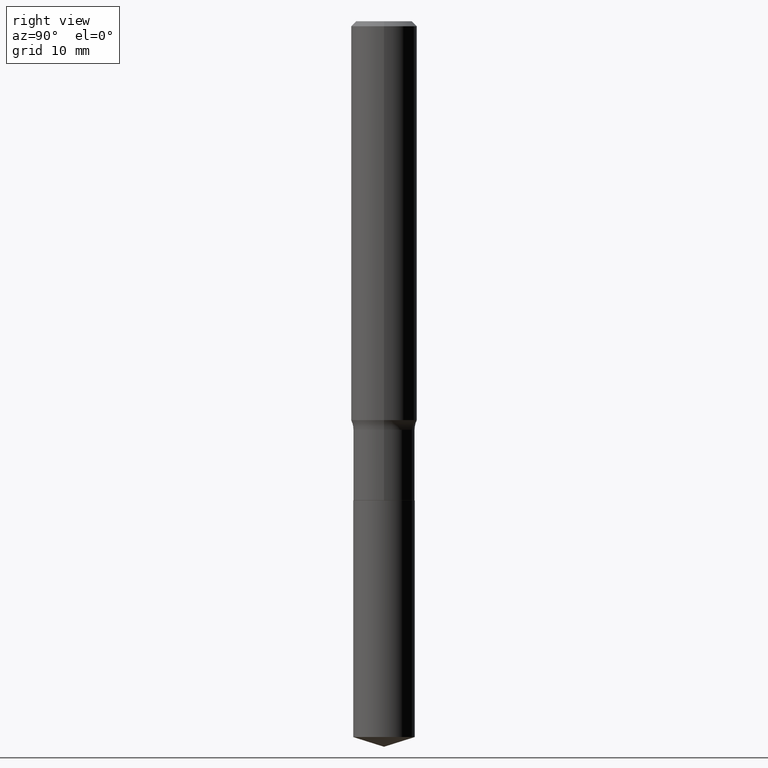
[diagram: clean part render]
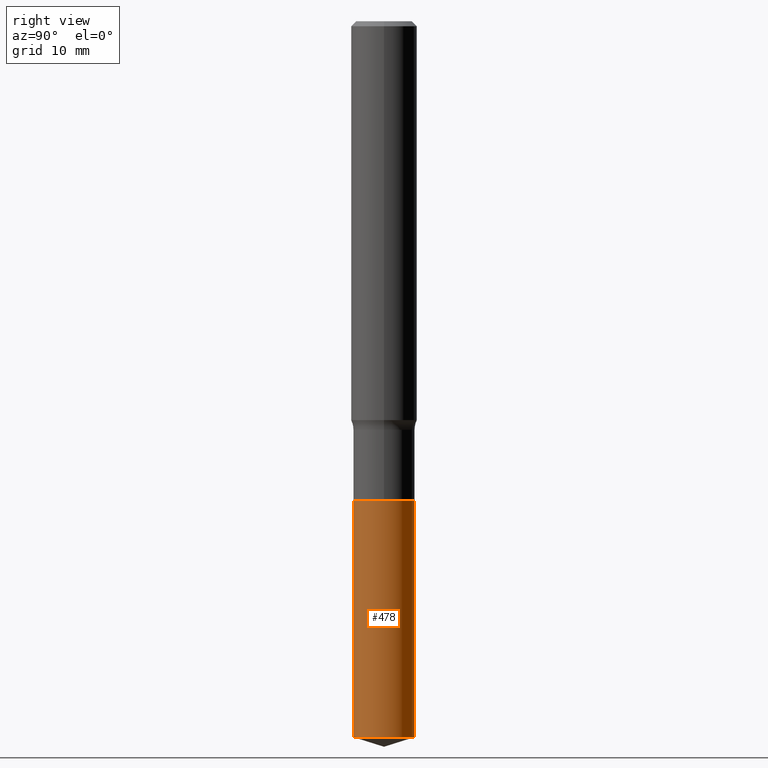
[diagram: same view with one face highlighted and labeled with its STEP entity id]
A machine part, right view. The second image highlights one B-rep face of the part: STEP entity #478.
In plain terms, the highlighted cylindrical surface (edge-blend (fillet) strip) has radius 2.8003 mm, axis along (-0, 0, 1).
Its self-contained STEP definition (entity closure, byte-faithful):
#2 = DIRECTION ( 'NONE',  ( -2.445657340504628845E-29, 3.491211346966925605E-15, 1.000000000000000000 ) ) ;
#21 = CARTESIAN_POINT ( 'NONE',  ( 4.197647205816786480E-29, -5.993127718124259199E-15, -1.716499999999999915 ) ) ;
#25 = DIRECTION ( 'NONE',  ( -2.445657340504628845E-29, 3.491211346966926000E-15, 1.000000000000000000 ) ) ;
#47 = CIRCLE ( 'NONE', #380, 0.1102500000000000008 ) ;
#77 = EDGE_LOOP ( 'NONE', ( #342, #278, #449, #347 ) ) ;
#102 = VECTOR ( 'NONE', #25, 39.37007874015748143 ) ;
#142 = AXIS2_PLACEMENT_3D ( 'NONE', #21, #364, #207 ) ;
#152 = DIRECTION ( 'NONE',  ( -2.445657340504628845E-29, 3.491211346966926000E-15, 1.000000000000000000 ) ) ;
#171 = DIRECTION ( 'NONE',  ( -6.982962677686266711E-15, -1.000000000000000000, 4.955733321839933614E-15 ) ) ;
#172 = VERTEX_POINT ( 'NONE', #247 ) ;
#174 = FACE_OUTER_BOUND ( 'NONE', #77, .T. ) ;
#191 = LINE ( 'NONE', #489, #480 ) ;
#203 = AXIS2_PLACEMENT_3D ( 'NONE', #476, #402, #171 ) ;
#207 = DIRECTION ( 'NONE',  ( -6.982962677686266711E-15, -1.000000000000000000, 2.477866660919966807E-15 ) ) ;
#247 = CARTESIAN_POINT ( 'NONE',  ( -7.698716352148484626E-16, -0.1102500000000089797, -2.563638308526091425 ) ) ;
#273 = VERTEX_POINT ( 'NONE', #437 ) ;
#278 = ORIENTED_EDGE ( 'NONE', *, *, #465, .T. ) ;
#286 = EDGE_CURVE ( 'NONE', #172, #330, #406, .T. ) ;
#288 = CARTESIAN_POINT ( 'NONE',  ( 7.833733661755523687E-16, 0.1102499999999940195, -1.716500000000000137 ) ) ;
#289 = CYLINDRICAL_SURFACE ( 'NONE', #142, 0.1102500000000000008 ) ;
#290 = VERTEX_POINT ( 'NONE', #328 ) ;
#310 = DIRECTION ( 'NONE',  ( -6.982962677686266711E-15, -1.000000000000000000, 2.477866660919966807E-15 ) ) ;
#328 = CARTESIAN_POINT ( 'NONE',  ( -7.698716352148689729E-16, -0.1102500000000059960, -1.716499999999999471 ) ) ;
#330 = VERTEX_POINT ( 'NONE', #453 ) ;
#342 = ORIENTED_EDGE ( 'NONE', *, *, #286, .T. ) ;
#347 = ORIENTED_EDGE ( 'NONE', *, *, #401, .F. ) ;
#348 = CARTESIAN_POINT ( 'NONE',  ( 4.197647205816786480E-29, -5.993127718124259199E-15, -1.716499999999999915 ) ) ;
#364 = DIRECTION ( 'NONE',  ( -2.445657340504628845E-29, 3.491211346966925605E-15, 1.000000000000000000 ) ) ;
#380 = AXIS2_PLACEMENT_3D ( 'NONE', #348, #2, #310 ) ;
#401 = EDGE_CURVE ( 'NONE', #172, #290, #191, .T. ) ;
#402 = DIRECTION ( 'NONE',  ( -2.445657340504628845E-29, 3.491211346966925605E-15, 1.000000000000000000 ) ) ;
#406 = CIRCLE ( 'NONE', #203, 0.1102500000000000008 ) ;
#420 = EDGE_CURVE ( 'NONE', #290, #273, #47, .T. ) ;
#437 = CARTESIAN_POINT ( 'NONE',  ( 7.833733661755731749E-16, 0.1102499999999940195, -1.716500000000000137 ) ) ;
#449 = ORIENTED_EDGE ( 'NONE', *, *, #420, .F. ) ;
#453 = CARTESIAN_POINT ( 'NONE',  ( 7.833733661755734707E-16, 0.1102499999999910912, -2.563638308526092757 ) ) ;
#465 = EDGE_CURVE ( 'NONE', #330, #273, #477, .T. ) ;
#476 = CARTESIAN_POINT ( 'NONE',  ( 6.269457228486298313E-29, -8.950666593300919607E-15, -2.563638308526091869 ) ) ;
#477 = LINE ( 'NONE', #288, #102 ) ;
#478 = ADVANCED_FACE ( 'NONE', ( #174 ), #289, .T. ) ;
#480 = VECTOR ( 'NONE', #152, 39.37007874015748143 ) ;
#489 = CARTESIAN_POINT ( 'NONE',  ( -7.698716352148689729E-16, -0.1102500000000059960, -1.716499999999999471 ) ) ;